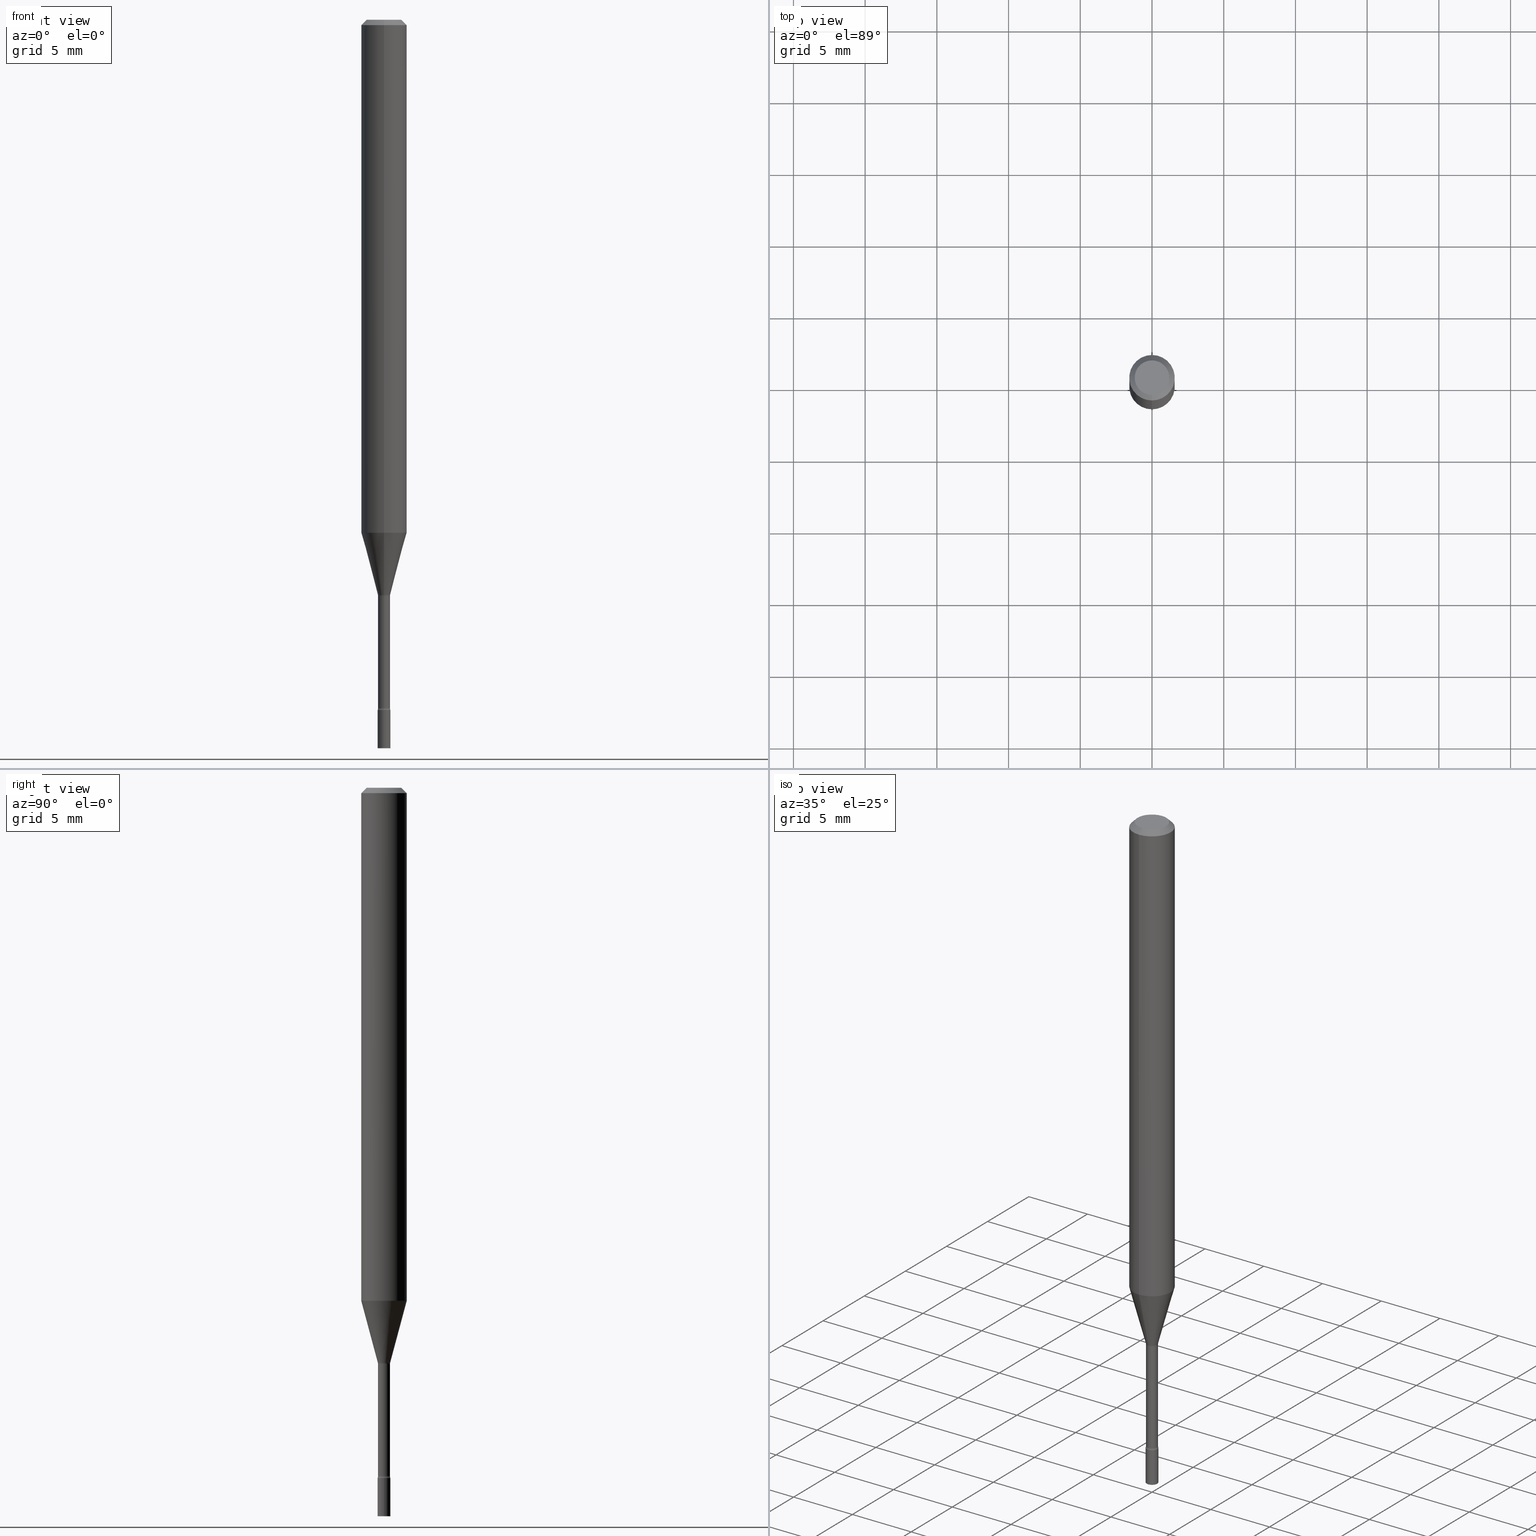
[diagram: canonical four-view strip — front | top / right | iso, engineering-drawing reading convention]
A machine part, canonical four-view strip (front | top / right | iso — engineering-drawing reading convention). The complete STEP part file that produces these views, byte-faithful:
ISO-10303-21;
HEADER;
FILE_DESCRIPTION (( 'STEP AP203' ),
    '1' );
FILE_NAME ('04300.STEP',
    '2024-03-08T22:58:17',
    ( '' ),
    ( '' ),
    'SwSTEP 2.0',
    'SolidWorks 2023',
    '' );
FILE_SCHEMA (( 'CONFIG_CONTROL_DESIGN' ));
ENDSEC;

DATA;
#1 = AXIS2_PLACEMENT_3D ( 'NONE', #419, #100, #338 ) ;
#2 = DIRECTION ( 'NONE',  ( -6.982962677686265133E-15, -1.000000000000000000, 3.491430358074373521E-15 ) ) ;
#3 = ADVANCED_FACE ( 'NONE', ( #126 ), #458, .F. ) ;
#4 = DIRECTION ( 'NONE',  ( 1.000000000000000000, -6.982962677686265922E-15, 4.876176775795936353E-29 ) ) ;
#5 = LINE ( 'NONE', #327, #28 ) ;
#6 = ORIENTED_EDGE ( 'NONE', *, *, #514, .F. ) ;
#7 = ORIENTED_EDGE ( 'NONE', *, *, #220, .T. ) ;
#8 = LOCAL_TIME ( 17, 58, 17.00000000000000000, #29 ) ;
#9 = DIRECTION ( 'NONE',  ( -1.807323732225325801E-15, -0.2588190451025175753, 0.9659258262890690894 ) ) ;
#10 = ADVANCED_FACE ( 'NONE', ( #376 ), #18, .T. ) ;
#11 = DIRECTION ( 'NONE',  ( -2.445468806185136597E-29, 3.491481338843145583E-15, 1.000000000000000000 ) ) ;
#12 = ORIENTED_EDGE ( 'NONE', *, *, #214, .T. ) ;
#13 = VERTEX_POINT ( 'NONE', #348 ) ;
#14 = DIRECTION ( 'NONE',  ( -6.982962677686265133E-15, -1.000000000000000000, 0.000000000000000000 ) ) ;
#15 = DIRECTION ( 'NONE',  ( -2.445504405865697767E-29, 3.491430358074373916E-15, 1.000000000000000000 ) ) ;
#16 = AXIS2_PLACEMENT_3D ( 'NONE', #513, #303, #472 ) ;
#17 = TOROIDAL_SURFACE ( 'NONE', #422, 0.03144999999999999879, 0.01500000000000002547 ) ;
#18 = PLANE ( 'NONE',  #213 ) ;
#19 = DIRECTION ( 'NONE',  ( 1.000000000000000000, -6.982962677686248567E-15, 0.000000000000000000 ) ) ;
#20 = MANIFOLD_SOLID_BREP ( 'Body-Move/Copy2[2]', #510 ) ;
#21 = DIRECTION ( 'NONE',  ( -2.445504405865697767E-29, 3.491430358074373916E-15, 1.000000000000000000 ) ) ;
#22 = CARTESIAN_POINT ( 'NONE',  ( 1.222018468595585719E-16, 0.01749999999999301767, -2.000000000000000000 ) ) ;
#23 = DIRECTION ( 'NONE',  ( -6.982962677686265133E-15, -1.000000000000000000, 0.000000000000000000 ) ) ;
#24 = LOCAL_TIME ( 17, 58, 17.00000000000000000, #344 ) ;
#25 = AXIS2_PLACEMENT_3D ( 'NONE', #164, #83, #119 ) ;
#26 = ADVANCED_FACE ( 'NONE', ( #440 ), #197, .F. ) ;
#27 = ORIENTED_EDGE ( 'NONE', *, *, #144, .F. ) ;
#28 = VECTOR ( 'NONE', #398, 39.37007874015748143 ) ;
#29 = COORDINATED_UNIVERSAL_TIME_OFFSET ( 5, 0, .BEHIND. ) ;
#30 = PERSON_AND_ORGANIZATION_ROLE ( 'classification_officer' ) ;
#31 = CARTESIAN_POINT ( 'NONE',  ( -4.364351673553916201E-16, -0.06250000000000000000, 2.182143973796483697E-16 ) ) ;
#32 = PRODUCT_DEFINITION ( 'UNKNOWN', '', #206, #170 ) ;
#33 = DIRECTION ( 'NONE',  ( -1.000000000000000000, 6.982962677686265922E-15, -4.883557194083112340E-29 ) ) ;
#34 = CIRCLE ( 'NONE', #16, 0.04749999999999999362 ) ;
#35 = AXIS2_PLACEMENT_3D ( 'NONE', #329, #169, #459 ) ;
#36 = DIRECTION ( 'NONE',  ( 7.105427357601001859E-15, 1.000000000000000000, 0.000000000000000000 ) ) ;
#37 = ORIENTED_EDGE ( 'NONE', *, *, #449, .T. ) ;
#38 = DIRECTION ( 'NONE',  ( -2.445504405865697767E-29, 3.491430358074373916E-15, 1.000000000000000000 ) ) ;
#39 = ADVANCED_FACE ( 'NONE', ( #106 ), #435, .T. ) ;
#40 = ORIENTED_EDGE ( 'NONE', *, *, #423, .T. ) ;
#41 = DIRECTION ( 'NONE',  ( -6.982962677686266711E-15, -1.000000000000000000, 0.000000000000000000 ) ) ;
#42 = EDGE_CURVE ( 'NONE', #484, #415, #356, .T. ) ;
#43 = VECTOR ( 'NONE', #15, 39.37007874015748143 ) ;
#44 = CARTESIAN_POINT ( 'NONE',  ( 4.634230849115497004E-29, -6.616260528550937316E-15, -1.894999999999999796 ) ) ;
#45 = CARTESIAN_POINT ( 'NONE',  ( 3.840629472727447874E-16, 0.04749999999999999362, -1.947592745229183872E-16 ) ) ;
#46 = EDGE_LOOP ( 'NONE', ( #6, #37, #466, #460 ) ) ;
#47 = APPROVAL ( #149, 'UNSPECIFIED' ) ;
#48 = DIRECTION ( 'NONE',  ( -6.982962677686265133E-15, -1.000000000000000000, 0.000000000000000000 ) ) ;
#49 = ORIENTED_EDGE ( 'NONE', *, *, #355, .T. ) ;
#50 = ORIENTED_EDGE ( 'NONE', *, *, #514, .T. ) ;
#51 = CIRCLE ( 'NONE', #296, 0.01500000000000001853 ) ;
#52 = AXIS2_PLACEMENT_3D ( 'NONE', #378, #342, #23 ) ;
#53 = CARTESIAN_POINT ( 'NONE',  ( 0.000000000000000000, 0.000000000000000000, 0.000000000000000000 ) ) ;
#54 = ORIENTED_EDGE ( 'NONE', *, *, #94, .T. ) ;
#55 = CYLINDRICAL_SURFACE ( 'NONE', #35, 0.01750000000000000167 ) ;
#56 = ADVANCED_FACE ( 'NONE', ( #439 ), #375, .T. ) ;
#57 = ORIENTED_EDGE ( 'NONE', *, *, #69, .T. ) ;
#58 = CARTESIAN_POINT ( 'NONE',  ( 3.443610276063243337E-29, -4.916419463561730281E-15, -1.408139060311453417 ) ) ;
#59 = EDGE_LOOP ( 'NONE', ( #330, #57, #421, #294 ) ) ;
#60 = DIRECTION ( 'NONE',  ( -1.000000000000000000, 6.982962677686265922E-15, -4.876176775795935793E-29 ) ) ;
#61 = TOROIDAL_SURFACE ( 'NONE', #399, 0.03145000000000004042, 0.01500000000000001853 ) ;
#62 = DIRECTION ( 'NONE',  ( 1.000000000000000000, -6.982962677686248567E-15, 0.000000000000000000 ) ) ;
#63 = EDGE_LOOP ( 'NONE', ( #168, #27, #129, #74 ) ) ;
#64 = DIRECTION ( 'NONE',  ( -6.982962677686266711E-15, -1.000000000000000000, 0.000000000000000000 ) ) ;
#65 = APPROVAL ( #471, 'UNSPECIFIED' ) ;
#66 = APPROVAL_STATUS ( 'not_yet_approved' ) ;
#67 = SECURITY_CLASSIFICATION_LEVEL ( 'unclassified' ) ;
#68 = CARTESIAN_POINT ( 'NONE',  ( 0.01750000000000000167, -1.222018468595096625E-16, 8.533309357642889039E-31 ) ) ;
#69 = EDGE_CURVE ( 'NONE', #13, #382, #179, .T. ) ;
#70 = CARTESIAN_POINT ( 'NONE',  ( 3.859232165984397415E-29, -5.509800068589623693E-15, -1.578092501787273116 ) ) ;
#71 =( NAMED_UNIT ( * ) PLANE_ANGLE_UNIT ( ) SI_UNIT ( $, .RADIAN. ) );
#72 = TOROIDAL_SURFACE ( 'NONE', #312, 0.03144999999999999879, 0.01500000000000002547 ) ;
#73 = VECTOR ( 'NONE', #464, 39.37007874015748143 ) ;
#74 = ORIENTED_EDGE ( 'NONE', *, *, #360, .T. ) ;
#75 = DIRECTION ( 'NONE',  ( 0.000000000000000000, 0.000000000000000000, 1.000000000000000000 ) ) ;
#76 = FACE_OUTER_BOUND ( 'NONE', #334, .T. ) ;
#77 = FACE_OUTER_BOUND ( 'NONE', #194, .T. ) ;
#78 = CC_DESIGN_PERSON_AND_ORGANIZATION_ASSIGNMENT ( #110, #187, ( #206 ) ) ;
#79 = CARTESIAN_POINT ( 'NONE',  ( -0.01750000000000000167, -6.675314928639007365E-15, -2.000000000000000000 ) ) ;
#80 = EDGE_CURVE ( 'NONE', #517, #308, #469, .T. ) ;
#81 = CONICAL_SURFACE ( 'NONE', #91, 0.06250000000000000000, 0.7853981633974483900 ) ;
#82 = SHAPE_DEFINITION_REPRESENTATION ( #406, #299 ) ;
#83 = DIRECTION ( 'NONE',  ( -1.000000000000000000, 6.982962677686265922E-15, -4.883557194083112340E-29 ) ) ;
#84 = ADVANCED_FACE ( 'NONE', ( #224 ), #81, .T. ) ;
#85 = CARTESIAN_POINT ( 'NONE',  ( -1.184388162973470360E-16, -0.01696111260566949067, -1.578092501787273116 ) ) ;
#86 = VERTEX_POINT ( 'NONE', #351 ) ;
#87 = ORIENTED_EDGE ( 'NONE', *, *, #355, .F. ) ;
#88 = CYLINDRICAL_SURFACE ( 'NONE', #92, 0.01645000000000000975 ) ;
#89 = ORIENTED_EDGE ( 'NONE', *, *, #220, .F. ) ;
#90 = CARTESIAN_POINT ( 'NONE',  ( 1.222018468595560081E-16, 0.01749999999999338543, -1.894999999999999796 ) ) ;
#91 = AXIS2_PLACEMENT_3D ( 'NONE', #118, #477, #196 ) ;
#92 = AXIS2_PLACEMENT_3D ( 'NONE', #161, #278, #2 ) ;
#93 = DIRECTION ( 'NONE',  ( 2.438088387897960049E-29, -3.491481338843145188E-15, -1.000000000000000000 ) ) ;
#94 = EDGE_CURVE ( 'NONE', #517, #322, #186, .T. ) ;
#95 = ORIENTED_EDGE ( 'NONE', *, *, #454, .T. ) ;
#96 = DIRECTION ( 'NONE',  ( -6.982962677686265922E-15, -1.000000000000000000, 0.000000000000000000 ) ) ;
#97 = EDGE_CURVE ( 'NONE', #86, #130, #51, .T. ) ;
#98 = DIRECTION ( 'NONE',  ( -6.982962677686265133E-15, -1.000000000000000000, 3.491430358074373521E-15 ) ) ;
#99 = ORIENTED_EDGE ( 'NONE', *, *, #401, .T. ) ;
#100 = DIRECTION ( 'NONE',  ( -2.445504405865697767E-29, 3.491430358074373916E-15, 1.000000000000000000 ) ) ;
#101 = APPROVAL_PERSON_ORGANIZATION ( #112, #138, #389 ) ;
#102 = EDGE_CURVE ( 'NONE', #382, #163, #379, .T. ) ;
#103 = CARTESIAN_POINT ( 'NONE',  ( 0.01750000000000000167, -7.105164524545800359E-15, -2.000000000000000000 ) ) ;
#104 = MECHANICAL_CONTEXT ( 'NONE', #450, 'mechanical' ) ;
#105 = PERSON_AND_ORGANIZATION ( #362, #321 ) ;
#106 = FACE_OUTER_BOUND ( 'NONE', #276, .T. ) ;
#107 = ADVANCED_FACE ( 'NONE', ( #275 ), #139, .T. ) ;
#108 = CIRCLE ( 'NONE', #347, 0.01750000000000000167 ) ;
#109 = AXIS2_PLACEMENT_3D ( 'NONE', #251, #249, #19 ) ;
#110 = PERSON_AND_ORGANIZATION ( #362, #321 ) ;
#111 = DIRECTION ( 'NONE',  ( 1.000000000000000000, -6.982962677686265922E-15, 4.876176775795935793E-29 ) ) ;
#112 = PERSON_AND_ORGANIZATION ( #362, #321 ) ;
#113 = DIRECTION ( 'NONE',  ( 6.982962677686265922E-15, 1.000000000000000000, -3.483106191921935554E-15 ) ) ;
#114 = COORDINATED_UNIVERSAL_TIME_OFFSET ( 5, 0, .BEHIND. ) ;
#115 = CARTESIAN_POINT ( 'NONE',  ( -4.364351673553912750E-16, -0.06250000000000005551, -0.01499999999999981209 ) ) ;
#116 = AXIS2_PLACEMENT_3D ( 'NONE', #200, #359, #4 ) ;
#117 = AXIS2_PLACEMENT_3D ( 'NONE', #503, #140, #298 ) ;
#118 = CARTESIAN_POINT ( 'NONE',  ( 3.668256608798553500E-31, -5.237145537111571573E-17, -0.01500000000000003067 ) ) ;
#119 = DIRECTION ( 'NONE',  ( -6.982962677686265133E-15, -1.000000000000000000, 0.000000000000000000 ) ) ;
#120 = DIRECTION ( 'NONE',  ( -6.982962677686265133E-15, -1.000000000000000000, 3.491430358074373521E-15 ) ) ;
#121 = EDGE_CURVE ( 'NONE', #484, #242, #295, .T. ) ;
#122 = ORIENTED_EDGE ( 'NONE', *, *, #401, .F. ) ;
#123 = VECTOR ( 'NONE', #21, 39.37007874015748143 ) ;
#124 = AXIS2_PLACEMENT_3D ( 'NONE', #58, #211, #374 ) ;
#125 = DIRECTION ( 'NONE',  ( -6.982962677686265922E-15, -1.000000000000000000, 3.491430358074373916E-15 ) ) ;
#126 = FACE_OUTER_BOUND ( 'NONE', #411, .T. ) ;
#127 = CARTESIAN_POINT ( 'NONE',  ( -1.184388162973470360E-16, -0.01696111260566949067, -1.578092501787273116 ) ) ;
#128 = CARTESIAN_POINT ( 'NONE',  ( -3.773273898774340269E-16, -0.04749999999999999362, 1.369266094941470933E-16 ) ) ;
#129 = ORIENTED_EDGE ( 'NONE', *, *, #397, .T. ) ;
#130 = VERTEX_POINT ( 'NONE', #354 ) ;
#131 = CC_DESIGN_PERSON_AND_ORGANIZATION_ASSIGNMENT ( #395, #429, ( #244 ) ) ;
#132 = AXIS2_PLACEMENT_3D ( 'NONE', #152, #75, #309 ) ;
#133 = CARTESIAN_POINT ( 'NONE',  ( -4.287811248607203282E-16, -0.06250000000000005551, -0.01499999999999981209 ) ) ;
#134 = ORIENTED_EDGE ( 'NONE', *, *, #97, .T. ) ;
#135 = CARTESIAN_POINT ( 'NONE',  ( 3.868669994914111510E-29, -5.523435448950248304E-15, -1.581974787463811039 ) ) ;
#136 = ORIENTED_EDGE ( 'NONE', *, *, #339, .T. ) ;
#137 = LINE ( 'NONE', #462, #73 ) ;
#138 = APPROVAL ( #66, 'UNSPECIFIED' ) ;
#139 = CYLINDRICAL_SURFACE ( 'NONE', #478, 0.06250000000000000000 ) ;
#140 = DIRECTION ( 'NONE',  ( -2.445504405865697767E-29, 3.491430358074373916E-15, 1.000000000000000000 ) ) ;
#141 = VECTOR ( 'NONE', #9, 39.37007874015748854 ) ;
#142 = LOCAL_TIME ( 17, 58, 17.00000000000000000, #114 ) ;
#143 = CARTESIAN_POINT ( 'NONE',  ( 4.364351673553919652E-16, 0.06249999999999995143, -0.01500000000000024751 ) ) ;
#144 = EDGE_CURVE ( 'NONE', #250, #241, #34, .T. ) ;
#145 = APPROVAL_DATE_TIME ( #185, #65 ) ;
#146 = DATE_AND_TIME ( #507, #24 ) ;
#147 = DIRECTION ( 'NONE',  ( -6.982962677686265922E-15, -1.000000000000000000, 3.491430358074373916E-15 ) ) ;
#148 = CIRCLE ( 'NONE', #314, 0.06250000000000000000 ) ;
#149 = APPROVAL_STATUS ( 'not_yet_approved' ) ;
#150 = FACE_OUTER_BOUND ( 'NONE', #46, .T. ) ;
#151 = ORIENTED_EDGE ( 'NONE', *, *, #144, .T. ) ;
#152 = CARTESIAN_POINT ( 'NONE',  ( 0.000000000000000000, 0.000000000000000000, 0.000000000000000000 ) ) ;
#153 = CARTESIAN_POINT ( 'NONE',  ( 3.859232165984397415E-29, -5.509800068589623693E-15, -1.578092501787273116 ) ) ;
#154 = ADVANCED_FACE ( 'NONE', ( #150 ), #391, .T. ) ;
#155 = ORIENTED_EDGE ( 'NONE', *, *, #121, .T. ) ;
#156 = DIRECTION ( 'NONE',  ( 1.000000000000000000, -7.105427357601001070E-15, 4.926314884207729327E-29 ) ) ;
#157 = CC_DESIGN_APPROVAL ( #47, ( #410 ) ) ;
#158 = CIRCLE ( 'NONE', #438, 0.01645000000000002363 ) ;
#159 = CIRCLE ( 'NONE', #264, 0.06250000000000000000 ) ;
#160 = DIRECTION ( 'NONE',  ( -2.445504405865697767E-29, 3.491430358074373916E-15, 1.000000000000000000 ) ) ;
#161 = CARTESIAN_POINT ( 'NONE',  ( 0.000000000000000000, 0.000000000000000000, 0.000000000000000000 ) ) ;
#162 = DIRECTION ( 'NONE',  ( 1.000000000000000000, -6.982962677686248567E-15, 0.000000000000000000 ) ) ;
#163 = VERTEX_POINT ( 'NONE', #115 ) ;
#164 = CARTESIAN_POINT ( 'NONE',  ( -2.196141762131943341E-16, -0.03145000000000552215, -1.581974787463811039 ) ) ;
#165 = EDGE_LOOP ( 'NONE', ( #497, #280, #475, #453 ) ) ;
#166 = LINE ( 'NONE', #315, #443 ) ;
#167 = EDGE_LOOP ( 'NONE', ( #452, #437, #203, #403 ) ) ;
#168 = ORIENTED_EDGE ( 'NONE', *, *, #449, .F. ) ;
#169 = DIRECTION ( 'NONE',  ( -2.445468806185136597E-29, 3.491481338843145583E-15, 1.000000000000000000 ) ) ;
#170 = DESIGN_CONTEXT ( 'detailed design', #201, 'design' ) ;
#171 = AXIS2_PLACEMENT_3D ( 'NONE', #70, #337, #270 ) ;
#172 = CIRCLE ( 'NONE', #52, 0.01644999999999999934 ) ;
#173 = CARTESIAN_POINT ( 'NONE',  ( 1.206146293953234297E-16, 0.01644999999999342821, -1.889486607215153047 ) ) ;
#174 = CARTESIAN_POINT ( 'NONE',  ( 4.634163387720833649E-29, -6.616357137107760427E-15, -1.894999999999999796 ) ) ;
#175 = CARTESIAN_POINT ( 'NONE',  ( 4.634230849115497004E-29, -6.616260528550937316E-15, -1.894999999999999796 ) ) ;
#176 = ADVANCED_FACE ( 'NONE', ( #76 ), #72, .F. ) ;
#177 = ORIENTED_EDGE ( 'NONE', *, *, #268, .T. ) ;
#178 = LINE ( 'NONE', #143, #384 ) ;
#179 = CIRCLE ( 'NONE', #495, 0.06250000000000000000 ) ;
#180 = CIRCLE ( 'NONE', #124, 0.06250000000000000000 ) ;
#181 = ORIENTED_EDGE ( 'NONE', *, *, #182, .T. ) ;
#182 = EDGE_CURVE ( 'NONE', #306, #242, #366, .T. ) ;
#183 = DATE_AND_TIME ( #231, #142 ) ;
#184 = ADVANCED_FACE ( 'NONE', ( #365 ), #285, .T. ) ;
#185 = DATE_AND_TIME ( #506, #504 ) ;
#186 = LINE ( 'NONE', #68, #409 ) ;
#187 = PERSON_AND_ORGANIZATION_ROLE ( 'design_supplier' ) ;
#188 = AXIS2_PLACEMENT_3D ( 'NONE', #193, #388, #217 ) ;
#189 = DIRECTION ( 'NONE',  ( -2.445504405865697767E-29, 3.491430358074373916E-15, 1.000000000000000000 ) ) ;
#190 = AXIS2_PLACEMENT_3D ( 'NONE', #256, #425, #64 ) ;
#191 = ORIENTED_EDGE ( 'NONE', *, *, #80, .F. ) ;
#192 = APPLICATION_PROTOCOL_DEFINITION ( 'international standard', 'config_control_design', 1994, #450 ) ;
#193 = CARTESIAN_POINT ( 'NONE',  ( 4.890937612370273194E-29, -6.982962677686291165E-15, -2.000000000000000000 ) ) ;
#194 = EDGE_LOOP ( 'NONE', ( #326, #155, #265, #363 ) ) ;
#195 =( CONVERSION_BASED_UNIT ( 'INCH', #392 ) LENGTH_UNIT ( ) NAMED_UNIT ( #259 ) );
#196 = DIRECTION ( 'NONE',  ( 6.982962677686265922E-15, 1.000000000000000000, -3.483106191921935554E-15 ) ) ;
#197 = TOROIDAL_SURFACE ( 'NONE', #427, 0.03145000000000004042, 0.01500000000000001853 ) ;
#198 = AXIS2_PLACEMENT_3D ( 'NONE', #357, #160, #41 ) ;
#199 = MANIFOLD_SOLID_BREP ( 'Body-Move/Copy2[1]', #520 ) ;
#200 = CARTESIAN_POINT ( 'NONE',  ( 0.000000000000000000, 0.000000000000000000, 0.000000000000000000 ) ) ;
#201 = APPLICATION_CONTEXT ( 'configuration controlled 3d designs of mechanical parts and assemblies' ) ;
#202 = FACE_OUTER_BOUND ( 'NONE', #59, .T. ) ;
#203 = ORIENTED_EDGE ( 'NONE', *, *, #258, .F. ) ;
#204 = CARTESIAN_POINT ( 'NONE',  ( 4.620747822768886437E-29, -6.597010901605935540E-15, -1.889486607215153047 ) ) ;
#205 = EDGE_LOOP ( 'NONE', ( #500, #239, #230, #416 ) ) ;
#206 = PRODUCT_DEFINITION_FORMATION_WITH_SPECIFIED_SOURCE ( 'ANY', '', #244, .NOT_KNOWN. ) ;
#207 = CARTESIAN_POINT ( 'NONE',  ( 4.620680557649244882E-29, -6.597107229085755306E-15, -1.889486607215153047 ) ) ;
#208 = EDGE_LOOP ( 'NONE', ( #448, #99, #54, #447 ) ) ;
#209 = CARTESIAN_POINT ( 'NONE',  ( 1.243449787580639146E-16, 0.01749999999999339237, -1.894999999999999796 ) ) ;
#210 = VERTEX_POINT ( 'NONE', #240 ) ;
#211 = DIRECTION ( 'NONE',  ( -2.445504405865697767E-29, 3.491430358074373916E-15, 1.000000000000000000 ) ) ;
#212 = EDGE_LOOP ( 'NONE', ( #136, #95, #387, #368 ) ) ;
#213 = AXIS2_PLACEMENT_3D ( 'NONE', #174, #266, #111 ) ;
#214 = EDGE_CURVE ( 'NONE', #325, #382, #482, .T. ) ;
#215 = AXIS2_PLACEMENT_3D ( 'NONE', #22, #93, #60 ) ;
#216 = CARTESIAN_POINT ( 'NONE',  ( -4.364351673553573540E-16, -0.06250000000000494049, -1.408139060311453195 ) ) ;
#217 = DIRECTION ( 'NONE',  ( 1.000000000000000000, -6.982962677686248567E-15, 0.000000000000000000 ) ) ;
#218 = FACE_OUTER_BOUND ( 'NONE', #208, .T. ) ;
#219 = LINE ( 'NONE', #133, #236 ) ;
#220 = EDGE_CURVE ( 'NONE', #325, #290, #248, .T. ) ;
#221 = APPROVAL_ROLE ( '' ) ;
#222 = CIRCLE ( 'NONE', #470, 0.01644999999999999934 ) ;
#223 = PERSON_AND_ORGANIZATION ( #362, #321 ) ;
#224 = FACE_OUTER_BOUND ( 'NONE', #63, .T. ) ;
#225 = DIRECTION ( 'NONE',  ( -2.445504405865697767E-29, 3.491430358074373916E-15, 1.000000000000000000 ) ) ;
#226 = ADVANCED_FACE ( 'NONE', ( #202 ), #404, .T. ) ;
#227 = AXIS2_PLACEMENT_3D ( 'NONE', #267, #432, #113 ) ;
#228 = DIRECTION ( 'NONE',  ( -6.982962677686265133E-15, -1.000000000000000000, 3.491430358074373521E-15 ) ) ;
#229 = CIRCLE ( 'NONE', #190, 0.01696111260566397771 ) ;
#230 = ORIENTED_EDGE ( 'NONE', *, *, #268, .F. ) ;
#231 = CALENDAR_DATE ( 2024, 8, 3 ) ;
#232 = DIRECTION ( 'NONE',  ( -6.982962677686265133E-15, -1.000000000000000000, 3.491430358074373521E-15 ) ) ;
#233 = DIRECTION ( 'NONE',  ( 6.982962677686265922E-15, 1.000000000000000000, -3.491430358074373916E-15 ) ) ;
#234 = CARTESIAN_POINT ( 'NONE',  ( 0.01750000000000000167, -6.738558983967269622E-15, -1.894999999999999796 ) ) ;
#235 = APPROVAL_PERSON_ORGANIZATION ( #512, #47, #305 ) ;
#236 = VECTOR ( 'NONE', #288, 39.37007874015748143 ) ;
#237 = CALENDAR_DATE ( 2024, 8, 3 ) ;
#238 = DIRECTION ( 'NONE',  ( -2.445504405865697767E-29, 3.491430358074373916E-15, 1.000000000000000000 ) ) ;
#239 = ORIENTED_EDGE ( 'NONE', *, *, #352, .T. ) ;
#240 = CARTESIAN_POINT ( 'NONE',  ( 4.440892098500972274E-16, 0.06249999999999993755, -0.01500000000000024751 ) ) ;
#241 = VERTEX_POINT ( 'NONE', #128 ) ;
#242 = VERTEX_POINT ( 'NONE', #277 ) ;
#243 = EDGE_CURVE ( 'NONE', #484, #86, #158, .T. ) ;
#244 = PRODUCT ( '04300', '04300', '', ( #104 ) ) ;
#245 = CARTESIAN_POINT ( 'NONE',  ( -1.148697360479003729E-16, -0.01645000000000552270, -1.581974787463811039 ) ) ;
#246 = VERTEX_POINT ( 'NONE', #402 ) ;
#247 = EDGE_LOOP ( 'NONE', ( #284, #252, #134, #40 ) ) ;
#248 = CIRCLE ( 'NONE', #25, 0.01500000000000002720 ) ;
#249 = DIRECTION ( 'NONE',  ( -2.445468806185136597E-29, 3.491481338843145583E-15, 1.000000000000000000 ) ) ;
#250 = VERTEX_POINT ( 'NONE', #45 ) ;
#251 = CARTESIAN_POINT ( 'NONE',  ( 4.890937612370273194E-29, -6.982962677686291165E-15, -2.000000000000000000 ) ) ;
#252 = ORIENTED_EDGE ( 'NONE', *, *, #274, .F. ) ;
#253 = CYLINDRICAL_SURFACE ( 'NONE', #1, 0.01645000000000000975 ) ;
#254 = AXIS2_PLACEMENT_3D ( 'NONE', #90, #335, #292 ) ;
#255 = DIRECTION ( 'NONE',  ( -6.982962677686265922E-15, -1.000000000000000000, 3.483106191921935554E-15 ) ) ;
#256 = CARTESIAN_POINT ( 'NONE',  ( 3.859232165984397415E-29, -5.509800068589623693E-15, -1.578092501787273116 ) ) ;
#257 = DATE_AND_TIME ( #476, #8 ) ;
#258 = EDGE_CURVE ( 'NONE', #163, #210, #148, .T. ) ;
#259 = DIMENSIONAL_EXPONENTS ( 1.000000000000000000, 0.000000000000000000, 0.000000000000000000, 0.000000000000000000, 0.000000000000000000, 0.000000000000000000, 0.000000000000000000 ) ;
#260 = ORIENTED_EDGE ( 'NONE', *, *, #408, .T. ) ;
#261 = AXIS2_PLACEMENT_3D ( 'NONE', #394, #480, #36 ) ;
#262 = PERSON_AND_ORGANIZATION_ROLE ( 'creator' ) ;
#263 = AXIS2_PLACEMENT_3D ( 'NONE', #153, #189, #502 ) ;
#264 = AXIS2_PLACEMENT_3D ( 'NONE', #383, #455, #255 ) ;
#265 = ORIENTED_EDGE ( 'NONE', *, *, #431, .F. ) ;
#266 = DIRECTION ( 'NONE',  ( -2.438088387897960049E-29, 3.491481338843145188E-15, 1.000000000000000000 ) ) ;
#267 = CARTESIAN_POINT ( 'NONE',  ( 3.668256608798553500E-31, -5.237145537111571573E-17, -0.01500000000000003067 ) ) ;
#268 = EDGE_CURVE ( 'NONE', #322, #246, #367, .T. ) ;
#269 = APPROVAL_DATE_TIME ( #257, #138 ) ;
#270 = DIRECTION ( 'NONE',  ( -6.982962677686266711E-15, -1.000000000000000000, 0.000000000000000000 ) ) ;
#271 = EDGE_LOOP ( 'NONE', ( #445, #364, #49, #287 ) ) ;
#272 = CARTESIAN_POINT ( 'NONE',  ( 3.868669994914111510E-29, -5.523435448950248304E-15, -1.581974787463811039 ) ) ;
#273 = CC_DESIGN_APPROVAL ( #65, ( #206 ) ) ;
#274 = EDGE_CURVE ( 'NONE', #86, #484, #341, .T. ) ;
#275 = FACE_OUTER_BOUND ( 'NONE', #167, .T. ) ;
#276 = EDGE_LOOP ( 'NONE', ( #405, #492, #12, #499 ) ) ;
#277 = CARTESIAN_POINT ( 'NONE',  ( 1.168842800325827475E-16, 0.01644999999999447252, -1.581974787463811039 ) ) ;
#278 = DIRECTION ( 'NONE',  ( -2.445504405865697767E-29, 3.491430358074373916E-15, 1.000000000000000000 ) ) ;
#279 = AXIS2_PLACEMENT_3D ( 'NONE', #417, #494, #62 ) ;
#280 = ORIENTED_EDGE ( 'NONE', *, *, #243, .T. ) ;
#281 = PLANE ( 'NONE',  #332 ) ;
#282 = CC_DESIGN_PERSON_AND_ORGANIZATION_ASSIGNMENT ( #433, #515, ( #32 ) ) ;
#283 = CARTESIAN_POINT ( 'NONE',  ( 4.620747822768886437E-29, -6.597010901605935540E-15, -1.889486607215153047 ) ) ;
#284 = ORIENTED_EDGE ( 'NONE', *, *, #42, .F. ) ;
#285 = CYLINDRICAL_SURFACE ( 'NONE', #116, 0.01750000000000000167 ) ;
#286 = EDGE_LOOP ( 'NONE', ( #412, #181, #491, #89 ) ) ;
#287 = ORIENTED_EDGE ( 'NONE', *, *, #97, .F. ) ;
#288 = DIRECTION ( 'NONE',  ( -4.851104656540964275E-15, -0.7071067811865500152, -0.7071067811865450192 ) ) ;
#289 = ADVANCED_FACE ( 'NONE', ( #77 ), #88, .T. ) ;
#290 = VERTEX_POINT ( 'NONE', #245 ) ;
#291 = FACE_OUTER_BOUND ( 'NONE', #371, .T. ) ;
#292 = DIRECTION ( 'NONE',  ( -6.982962677686265922E-15, -1.000000000000000000, 3.491430358074373916E-15 ) ) ;
#293 = LINE ( 'NONE', #501, #43 ) ;
#294 = ORIENTED_EDGE ( 'NONE', *, *, #360, .F. ) ;
#295 = LINE ( 'NONE', #307, #123 ) ;
#296 = AXIS2_PLACEMENT_3D ( 'NONE', #434, #33, #463 ) ;
#297 = CC_DESIGN_APPROVAL ( #138, ( #32 ) ) ;
#298 = DIRECTION ( 'NONE',  ( -6.982962677686266711E-15, -1.000000000000000000, 3.491430358074373916E-15 ) ) ;
#299 = ADVANCED_BREP_SHAPE_REPRESENTATION ( '04300', ( #199, #20, #132 ), #302 ) ;
#300 = CC_DESIGN_PERSON_AND_ORGANIZATION_ASSIGNMENT ( #105, #262, ( #206 ) ) ;
#301 =( LENGTH_UNIT ( ) NAMED_UNIT ( * ) SI_UNIT ( $, .METRE. ) );
#302 =( GEOMETRIC_REPRESENTATION_CONTEXT ( 3 ) GLOBAL_UNCERTAINTY_ASSIGNED_CONTEXT ( ( #373 ) ) GLOBAL_UNIT_ASSIGNED_CONTEXT ( ( #195, #71, #386 ) ) REPRESENTATION_CONTEXT ( 'NONE', 'WORKASPACE' ) );
#303 = DIRECTION ( 'NONE',  ( -2.445504405865697767E-29, 3.491430358074373916E-15, 1.000000000000000000 ) ) ;
#304 = EDGE_CURVE ( 'NONE', #13, #210, #5, .T. ) ;
#305 = APPROVAL_ROLE ( '' ) ;
#306 = VERTEX_POINT ( 'NONE', #407 ) ;
#307 = CARTESIAN_POINT ( 'NONE',  ( 1.168842800325365252E-16, 0.01645000000000000975, -5.743402939032348028E-17 ) ) ;
#308 = VERTEX_POINT ( 'NONE', #79 ) ;
#309 = DIRECTION ( 'NONE',  ( 1.000000000000000000, 0.000000000000000000, 0.000000000000000000 ) ) ;
#310 = CARTESIAN_POINT ( 'NONE',  ( 3.443610276063243337E-29, -4.916419463561730281E-15, -1.408139060311453417 ) ) ;
#311 = ADVANCED_FACE ( 'NONE', ( #317 ), #61, .F. ) ;
#312 = AXIS2_PLACEMENT_3D ( 'NONE', #272, #518, #232 ) ;
#313 = DIRECTION ( 'NONE',  ( 7.105427357601000281E-15, 1.000000000000000000, 0.000000000000000000 ) ) ;
#314 = AXIS2_PLACEMENT_3D ( 'NONE', #361, #441, #319 ) ;
#315 = CARTESIAN_POINT ( 'NONE',  ( -0.01750000000000000167, 1.243449787580175444E-16, -8.608136407946085539E-31 ) ) ;
#316 = DATE_AND_TIME ( #237, #485 ) ;
#317 = FACE_OUTER_BOUND ( 'NONE', #271, .T. ) ;
#318 = ORIENTED_EDGE ( 'NONE', *, *, #182, .F. ) ;
#319 = DIRECTION ( 'NONE',  ( -6.982962677686265922E-15, -1.000000000000000000, 3.483106191921935554E-15 ) ) ;
#320 = ADVANCED_FACE ( 'NONE', ( #487 ), #281, .F. ) ;
#321 = ORGANIZATION ( 'UNSPECIFIED', 'UNSPECIFIED', '' ) ;
#322 = VERTEX_POINT ( 'NONE', #234 ) ;
#323 = COORDINATED_UNIVERSAL_TIME_OFFSET ( 5, 0, .BEHIND. ) ;
#324 = DIRECTION ( 'NONE',  ( -2.445504405865697767E-29, 3.491430358074373916E-15, 1.000000000000000000 ) ) ;
#325 = VERTEX_POINT ( 'NONE', #85 ) ;
#326 = ORIENTED_EDGE ( 'NONE', *, *, #274, .T. ) ;
#327 = CARTESIAN_POINT ( 'NONE',  ( 4.440892098500625669E-16, 0.06250000000000000000, -2.182143973796483697E-16 ) ) ;
#328 = ORIENTED_EDGE ( 'NONE', *, *, #423, .F. ) ;
#329 = CARTESIAN_POINT ( 'NONE',  ( 0.000000000000000000, 0.000000000000000000, 0.000000000000000000 ) ) ;
#330 = ORIENTED_EDGE ( 'NONE', *, *, #304, .F. ) ;
#331 = CIRCLE ( 'NONE', #279, 0.01750000000000000167 ) ;
#332 = AXIS2_PLACEMENT_3D ( 'NONE', #369, #446, #233 ) ;
#333 = DIRECTION ( 'NONE',  ( 4.937700262164548042E-15, 0.7071067811865451302, -0.7071067811865499042 ) ) ;
#334 = EDGE_LOOP ( 'NONE', ( #318, #418, #7, #420 ) ) ;
#335 = DIRECTION ( 'NONE',  ( -2.445504405865697487E-29, 3.491430358074373916E-15, 1.000000000000000000 ) ) ;
#336 = DIRECTION ( 'NONE',  ( -6.982962677686265922E-15, -1.000000000000000000, 0.000000000000000000 ) ) ;
#337 = DIRECTION ( 'NONE',  ( -2.445504405865697767E-29, 3.491430358074373916E-15, 1.000000000000000000 ) ) ;
#338 = DIRECTION ( 'NONE',  ( -6.982962677686265133E-15, -1.000000000000000000, 3.491430358074373521E-15 ) ) ;
#339 = EDGE_CURVE ( 'NONE', #325, #306, #377, .T. ) ;
#340 = AXIS2_PLACEMENT_3D ( 'NONE', #396, #156, #313 ) ;
#341 = CIRCLE ( 'NONE', #393, 0.01645000000000002363 ) ;
#342 = DIRECTION ( 'NONE',  ( -2.445504405865697767E-29, 3.491430358074373916E-15, 1.000000000000000000 ) ) ;
#343 = COORDINATED_UNIVERSAL_TIME_OFFSET ( 5, 0, .BEHIND. ) ;
#344 = COORDINATED_UNIVERSAL_TIME_OFFSET ( 5, 0, .BEHIND. ) ;
#345 = CARTESIAN_POINT ( 'NONE',  ( 0.000000000000000000, 0.000000000000000000, 0.000000000000000000 ) ) ;
#346 = DATE_TIME_ROLE ( 'classification_date' ) ;
#347 = AXIS2_PLACEMENT_3D ( 'NONE', #175, #413, #336 ) ;
#348 = CARTESIAN_POINT ( 'NONE',  ( 4.440892098500969316E-16, 0.06249999999999507339, -1.408139060311453639 ) ) ;
#349 = EDGE_LOOP ( 'NONE', ( #151, #50 ) ) ;
#350 = APPLICATION_PROTOCOL_DEFINITION ( 'international standard', 'config_control_design', 1994, #201 ) ;
#351 = CARTESIAN_POINT ( 'NONE',  ( -1.148697360478930266E-16, -0.01645000000000661905, -1.889486607215153047 ) ) ;
#352 = EDGE_CURVE ( 'NONE', #308, #246, #166, .T. ) ;
#353 = EDGE_LOOP ( 'NONE', ( #177, #260 ) ) ;
#354 = CARTESIAN_POINT ( 'NONE',  ( -1.222018468594633662E-16, -0.01750000000000662484, -1.894999999999999796 ) ) ;
#355 = EDGE_CURVE ( 'NONE', #415, #130, #496, .T. ) ;
#356 = CIRCLE ( 'NONE', #261, 0.01500000000000001853 ) ;
#357 = CARTESIAN_POINT ( 'NONE',  ( 3.859232165984397415E-29, -5.509800068589623693E-15, -1.578092501787273116 ) ) ;
#358 = AXIS2_PLACEMENT_3D ( 'NONE', #44, #444, #96 ) ;
#359 = DIRECTION ( 'NONE',  ( -2.445468806185136597E-29, 3.491481338843145583E-15, 1.000000000000000000 ) ) ;
#360 = EDGE_CURVE ( 'NONE', #210, #163, #159, .T. ) ;
#361 = CARTESIAN_POINT ( 'NONE',  ( 3.668256608798553500E-31, -5.237145537111571573E-17, -0.01500000000000003067 ) ) ;
#362 = PERSON ( 'UNSPECIFIED', 'UNSPECIFIED', 'UNSPECIFIED', ('UNSPECIFIED'), ('UNSPECIFIED'), ('UNSPECIFIED') ) ;
#363 = ORIENTED_EDGE ( 'NONE', *, *, #481, .F. ) ;
#364 = ORIENTED_EDGE ( 'NONE', *, *, #42, .T. ) ;
#365 = FACE_OUTER_BOUND ( 'NONE', #205, .T. ) ;
#366 = CIRCLE ( 'NONE', #340, 0.01500000000000002720 ) ;
#367 = CIRCLE ( 'NONE', #511, 0.01750000000000000167 ) ;
#368 = ORIENTED_EDGE ( 'NONE', *, *, #214, .F. ) ;
#369 = CARTESIAN_POINT ( 'NONE',  ( 3.316907271900976096E-16, 0.04749999999999999362, -1.803011082657256007E-16 ) ) ;
#370 = EDGE_CURVE ( 'NONE', #242, #290, #172, .T. ) ;
#371 = EDGE_LOOP ( 'NONE', ( #191, #122 ) ) ;
#372 = DIRECTION ( 'NONE',  ( -2.445504405865697767E-29, 3.491430358074373916E-15, 1.000000000000000000 ) ) ;
#373 = UNCERTAINTY_MEASURE_WITH_UNIT (LENGTH_MEASURE( 1.000000000000000082E-05 ), #195, 'distance_accuracy_value', 'NONE');
#374 = DIRECTION ( 'NONE',  ( -6.982962677686265922E-15, -1.000000000000000000, 4.370956789862821150E-15 ) ) ;
#375 = CONICAL_SURFACE ( 'NONE', #171, 0.01696111260566397771, 0.2617993877991496299 ) ;
#376 = FACE_OUTER_BOUND ( 'NONE', #353, .T. ) ;
#377 = CIRCLE ( 'NONE', #198, 0.01696111260566397771 ) ;
#378 = CARTESIAN_POINT ( 'NONE',  ( 3.868726312711200539E-29, -5.523354798659406654E-15, -1.581974787463811039 ) ) ;
#379 = LINE ( 'NONE', #31, #486 ) ;
#380 = CARTESIAN_POINT ( 'NONE',  ( 3.868726312711200539E-29, -5.523354798659406654E-15, -1.581974787463811039 ) ) ;
#381 = ADVANCED_FACE ( 'NONE', ( #218 ), #55, .T. ) ;
#382 = VERTEX_POINT ( 'NONE', #216 ) ;
#383 = CARTESIAN_POINT ( 'NONE',  ( 3.668256608798553500E-31, -5.237145537111571573E-17, -0.01500000000000003067 ) ) ;
#384 = VECTOR ( 'NONE', #333, 39.37007874015748143 ) ;
#385 = ADVANCED_FACE ( 'NONE', ( #291 ), #505, .T. ) ;
#386 =( NAMED_UNIT ( * ) SI_UNIT ( $, .STERADIAN. ) SOLID_ANGLE_UNIT ( ) );
#387 = ORIENTED_EDGE ( 'NONE', *, *, #465, .F. ) ;
#388 = DIRECTION ( 'NONE',  ( -2.445468806185136597E-29, 3.491481338843145583E-15, 1.000000000000000000 ) ) ;
#389 = APPROVAL_ROLE ( '' ) ;
#390 = DIRECTION ( 'NONE',  ( -2.445504405865697767E-29, 3.491430358074373916E-15, 1.000000000000000000 ) ) ;
#391 = CONICAL_SURFACE ( 'NONE', #227, 0.06250000000000000000, 0.7853981633974483900 ) ;
#392 = LENGTH_MEASURE_WITH_UNIT ( LENGTH_MEASURE( 0.02539999999999999897 ), #301 );
#393 = AXIS2_PLACEMENT_3D ( 'NONE', #204, #488, #451 ) ;
#394 = CARTESIAN_POINT ( 'NONE',  ( 2.234656903965979440E-16, 0.03144999999999344154, -1.889486607215153047 ) ) ;
#395 = PERSON_AND_ORGANIZATION ( #362, #321 ) ;
#396 = CARTESIAN_POINT ( 'NONE',  ( 2.234656903965901540E-16, 0.03144999999999447543, -1.581974787463811039 ) ) ;
#397 = EDGE_CURVE ( 'NONE', #250, #210, #178, .T. ) ;
#398 = DIRECTION ( 'NONE',  ( -2.445504405865697767E-29, 3.491430358074373916E-15, 1.000000000000000000 ) ) ;
#399 = AXIS2_PLACEMENT_3D ( 'NONE', #207, #483, #120 ) ;
#400 = DIRECTION ( 'NONE',  ( -2.445468806185136877E-29, 3.491481338843145188E-15, 1.000000000000000000 ) ) ;
#401 = EDGE_CURVE ( 'NONE', #308, #517, #457, .T. ) ;
#402 = CARTESIAN_POINT ( 'NONE',  ( -0.01750000000000000167, -6.675314928639007365E-15, -1.894999999999999796 ) ) ;
#403 = ORIENTED_EDGE ( 'NONE', *, *, #102, .F. ) ;
#404 = CYLINDRICAL_SURFACE ( 'NONE', #456, 0.06250000000000000000 ) ;
#405 = ORIENTED_EDGE ( 'NONE', *, *, #454, .F. ) ;
#406 = PRODUCT_DEFINITION_SHAPE ( 'NONE', 'NONE',  #32 ) ;
#407 = CARTESIAN_POINT ( 'NONE',  ( 2.823025816868859611E-16, 0.01696111260565846823, -1.578092501787273116 ) ) ;
#408 = EDGE_CURVE ( 'NONE', #246, #322, #331, .T. ) ;
#409 = VECTOR ( 'NONE', #473, 39.37007874015748143 ) ;
#410 = SECURITY_CLASSIFICATION ( '', '', #67 ) ;
#411 = EDGE_LOOP ( 'NONE', ( #328, #87 ) ) ;
#412 = ORIENTED_EDGE ( 'NONE', *, *, #519, .F. ) ;
#413 = DIRECTION ( 'NONE',  ( -2.445504405865697767E-29, 3.491430358074373916E-15, 1.000000000000000000 ) ) ;
#414 = PRODUCT_RELATED_PRODUCT_CATEGORY ( 'detail', '', ( #244 ) ) ;
#415 = VERTEX_POINT ( 'NONE', #209 ) ;
#416 = ORIENTED_EDGE ( 'NONE', *, *, #94, .F. ) ;
#417 = CARTESIAN_POINT ( 'NONE',  ( 4.634163387720833649E-29, -6.616357137107760427E-15, -1.894999999999999796 ) ) ;
#418 = ORIENTED_EDGE ( 'NONE', *, *, #339, .F. ) ;
#419 = CARTESIAN_POINT ( 'NONE',  ( 0.000000000000000000, 0.000000000000000000, 0.000000000000000000 ) ) ;
#420 = ORIENTED_EDGE ( 'NONE', *, *, #431, .T. ) ;
#421 = ORIENTED_EDGE ( 'NONE', *, *, #102, .T. ) ;
#422 = AXIS2_PLACEMENT_3D ( 'NONE', #135, #461, #98 ) ;
#423 = EDGE_CURVE ( 'NONE', #130, #415, #108, .T. ) ;
#424 = FACE_OUTER_BOUND ( 'NONE', #165, .T. ) ;
#425 = DIRECTION ( 'NONE',  ( -2.445504405865697767E-29, 3.491430358074373916E-15, 1.000000000000000000 ) ) ;
#426 = DATE_TIME_ROLE ( 'creation_date' ) ;
#427 = AXIS2_PLACEMENT_3D ( 'NONE', #516, #38, #228 ) ;
#428 = APPROVAL_PERSON_ORGANIZATION ( #467, #65, #221 ) ;
#429 = PERSON_AND_ORGANIZATION_ROLE ( 'design_owner' ) ;
#430 = DIRECTION ( 'NONE',  ( -6.982962677686265922E-15, -1.000000000000000000, 4.370956789862821150E-15 ) ) ;
#431 = EDGE_CURVE ( 'NONE', #290, #242, #222, .T. ) ;
#432 = DIRECTION ( 'NONE',  ( 2.445504405865697767E-29, -3.491430358074373916E-15, -1.000000000000000000 ) ) ;
#433 = PERSON_AND_ORGANIZATION ( #362, #321 ) ;
#434 = CARTESIAN_POINT ( 'NONE',  ( -2.196141762131871604E-16, -0.03145000000000663931, -1.889486607215153047 ) ) ;
#435 = CONICAL_SURFACE ( 'NONE', #263, 0.01696111260566397771, 0.2617993877991496299 ) ;
#436 = CC_DESIGN_DATE_AND_TIME_ASSIGNMENT ( #146, #346, ( #410 ) ) ;
#437 = ORIENTED_EDGE ( 'NONE', *, *, #304, .T. ) ;
#438 = AXIS2_PLACEMENT_3D ( 'NONE', #283, #238, #48 ) ;
#439 = FACE_OUTER_BOUND ( 'NONE', #212, .T. ) ;
#440 = FACE_OUTER_BOUND ( 'NONE', #247, .T. ) ;
#441 = DIRECTION ( 'NONE',  ( -2.445504405865697767E-29, 3.491430358074373916E-15, 1.000000000000000000 ) ) ;
#442 = APPROVAL_DATE_TIME ( #316, #47 ) ;
#443 = VECTOR ( 'NONE', #400, 39.37007874015748143 ) ;
#444 = DIRECTION ( 'NONE',  ( -2.445504405865697767E-29, 3.491430358074373916E-15, 1.000000000000000000 ) ) ;
#445 = ORIENTED_EDGE ( 'NONE', *, *, #243, .F. ) ;
#446 = DIRECTION ( 'NONE',  ( 2.445504405865697487E-29, -3.491430358074373916E-15, -1.000000000000000000 ) ) ;
#447 = ORIENTED_EDGE ( 'NONE', *, *, #408, .F. ) ;
#448 = ORIENTED_EDGE ( 'NONE', *, *, #352, .F. ) ;
#449 = EDGE_CURVE ( 'NONE', #241, #163, #219, .T. ) ;
#450 = APPLICATION_CONTEXT ( 'configuration controlled 3d designs of mechanical parts and assemblies' ) ;
#451 = DIRECTION ( 'NONE',  ( -6.982962677686265133E-15, -1.000000000000000000, 0.000000000000000000 ) ) ;
#452 = ORIENTED_EDGE ( 'NONE', *, *, #465, .T. ) ;
#453 = ORIENTED_EDGE ( 'NONE', *, *, #370, .F. ) ;
#454 = EDGE_CURVE ( 'NONE', #306, #13, #137, .T. ) ;
#455 = DIRECTION ( 'NONE',  ( -2.445504405865697767E-29, 3.491430358074373916E-15, 1.000000000000000000 ) ) ;
#456 = AXIS2_PLACEMENT_3D ( 'NONE', #53, #324, #125 ) ;
#457 = CIRCLE ( 'NONE', #109, 0.01750000000000000167 ) ;
#458 = PLANE ( 'NONE',  #254 ) ;
#459 = DIRECTION ( 'NONE',  ( 1.000000000000000000, -6.982962677686265922E-15, 4.876176775795936353E-29 ) ) ;
#460 = ORIENTED_EDGE ( 'NONE', *, *, #397, .F. ) ;
#461 = DIRECTION ( 'NONE',  ( -2.445504405865697767E-29, 3.491430358074373916E-15, 1.000000000000000000 ) ) ;
#462 = CARTESIAN_POINT ( 'NONE',  ( 1.205159535236746208E-16, 0.01696111260565846823, -1.578092501787273116 ) ) ;
#463 = DIRECTION ( 'NONE',  ( -6.982962677686267499E-15, -1.000000000000000000, 0.000000000000000000 ) ) ;
#464 = DIRECTION ( 'NONE',  ( 1.839019923739595977E-15, 0.2588190451025243477, 0.9659258262890673130 ) ) ;
#465 = EDGE_CURVE ( 'NONE', #382, #13, #180, .T. ) ;
#466 = ORIENTED_EDGE ( 'NONE', *, *, #258, .T. ) ;
#467 = PERSON_AND_ORGANIZATION ( #362, #321 ) ;
#468 = CC_DESIGN_PERSON_AND_ORGANIZATION_ASSIGNMENT ( #223, #30, ( #410 ) ) ;
#469 = CIRCLE ( 'NONE', #188, 0.01750000000000000167 ) ;
#470 = AXIS2_PLACEMENT_3D ( 'NONE', #380, #372, #14 ) ;
#471 = APPROVAL_STATUS ( 'not_yet_approved' ) ;
#472 = DIRECTION ( 'NONE',  ( -6.982962677686266711E-15, -1.000000000000000000, 3.491430358074373916E-15 ) ) ;
#473 = DIRECTION ( 'NONE',  ( -2.445468806185136877E-29, 3.491481338843145188E-15, 1.000000000000000000 ) ) ;
#474 = CC_DESIGN_DATE_AND_TIME_ASSIGNMENT ( #183, #426, ( #32 ) ) ;
#475 = ORIENTED_EDGE ( 'NONE', *, *, #481, .T. ) ;
#476 = CALENDAR_DATE ( 2024, 8, 3 ) ;
#477 = DIRECTION ( 'NONE',  ( 2.445504405865697767E-29, -3.491430358074373916E-15, -1.000000000000000000 ) ) ;
#478 = AXIS2_PLACEMENT_3D ( 'NONE', #345, #509, #147 ) ;
#479 = CIRCLE ( 'NONE', #117, 0.04749999999999999362 ) ;
#480 = DIRECTION ( 'NONE',  ( 1.000000000000000000, -7.105427357601001070E-15, 4.926314884207729327E-29 ) ) ;
#481 = EDGE_CURVE ( 'NONE', #86, #290, #293, .T. ) ;
#482 = LINE ( 'NONE', #127, #141 ) ;
#483 = DIRECTION ( 'NONE',  ( -2.445504405865697767E-29, 3.491430358074373916E-15, 1.000000000000000000 ) ) ;
#484 = VERTEX_POINT ( 'NONE', #173 ) ;
#485 = LOCAL_TIME ( 17, 58, 17.00000000000000000, #323 ) ;
#486 = VECTOR ( 'NONE', #390, 39.37007874015748143 ) ;
#487 = FACE_OUTER_BOUND ( 'NONE', #349, .T. ) ;
#488 = DIRECTION ( 'NONE',  ( -2.445504405865697767E-29, 3.491430358074373916E-15, 1.000000000000000000 ) ) ;
#489 = ADVANCED_FACE ( 'NONE', ( #498 ), #17, .F. ) ;
#490 = CARTESIAN_POINT ( 'NONE',  ( 4.634163387720833649E-29, -6.616357137107760427E-15, -1.894999999999999796 ) ) ;
#491 = ORIENTED_EDGE ( 'NONE', *, *, #370, .T. ) ;
#492 = ORIENTED_EDGE ( 'NONE', *, *, #519, .T. ) ;
#493 = CC_DESIGN_SECURITY_CLASSIFICATION ( #410, ( #206 ) ) ;
#494 = DIRECTION ( 'NONE',  ( -2.445468806185136597E-29, 3.491481338843145583E-15, 1.000000000000000000 ) ) ;
#495 = AXIS2_PLACEMENT_3D ( 'NONE', #310, #225, #430 ) ;
#496 = CIRCLE ( 'NONE', #358, 0.01750000000000000167 ) ;
#497 = ORIENTED_EDGE ( 'NONE', *, *, #121, .F. ) ;
#498 = FACE_OUTER_BOUND ( 'NONE', #286, .T. ) ;
#499 = ORIENTED_EDGE ( 'NONE', *, *, #69, .F. ) ;
#500 = ORIENTED_EDGE ( 'NONE', *, *, #80, .T. ) ;
#501 = CARTESIAN_POINT ( 'NONE',  ( -1.148697360479391256E-16, -0.01645000000000000975, 5.743402939032348028E-17 ) ) ;
#502 = DIRECTION ( 'NONE',  ( -6.982962677686266711E-15, -1.000000000000000000, 0.000000000000000000 ) ) ;
#503 = CARTESIAN_POINT ( 'NONE',  ( 7.071501856540766102E-46, -1.009593611848991810E-31, -2.891633251438565311E-17 ) ) ;
#504 = LOCAL_TIME ( 17, 58, 17.00000000000000000, #343 ) ;
#505 = PLANE ( 'NONE',  #215 ) ;
#506 = CALENDAR_DATE ( 2024, 8, 3 ) ;
#507 = CALENDAR_DATE ( 2024, 8, 3 ) ;
#508 = ADVANCED_FACE ( 'NONE', ( #424 ), #253, .T. ) ;
#509 = DIRECTION ( 'NONE',  ( -2.445504405865697767E-29, 3.491430358074373916E-15, 1.000000000000000000 ) ) ;
#510 = CLOSED_SHELL ( 'NONE', ( #489, #289, #311, #154, #107, #56, #39, #226, #84, #320, #3, #26, #508, #176 ) ) ;
#511 = AXIS2_PLACEMENT_3D ( 'NONE', #490, #11, #162 ) ;
#512 = PERSON_AND_ORGANIZATION ( #362, #321 ) ;
#513 = CARTESIAN_POINT ( 'NONE',  ( 7.071501856540766102E-46, -1.009593611848991810E-31, -2.891633251438565311E-17 ) ) ;
#514 = EDGE_CURVE ( 'NONE', #241, #250, #479, .T. ) ;
#515 = PERSON_AND_ORGANIZATION_ROLE ( 'creator' ) ;
#516 = CARTESIAN_POINT ( 'NONE',  ( 4.620680557649244882E-29, -6.597107229085755306E-15, -1.889486607215153047 ) ) ;
#517 = VERTEX_POINT ( 'NONE', #103 ) ;
#518 = DIRECTION ( 'NONE',  ( -2.445504405865697767E-29, 3.491430358074373916E-15, 1.000000000000000000 ) ) ;
#519 = EDGE_CURVE ( 'NONE', #306, #325, #229, .T. ) ;
#520 = CLOSED_SHELL ( 'NONE', ( #184, #10, #381, #385 ) ) ;
ENDSEC;
END-ISO-10303-21;
